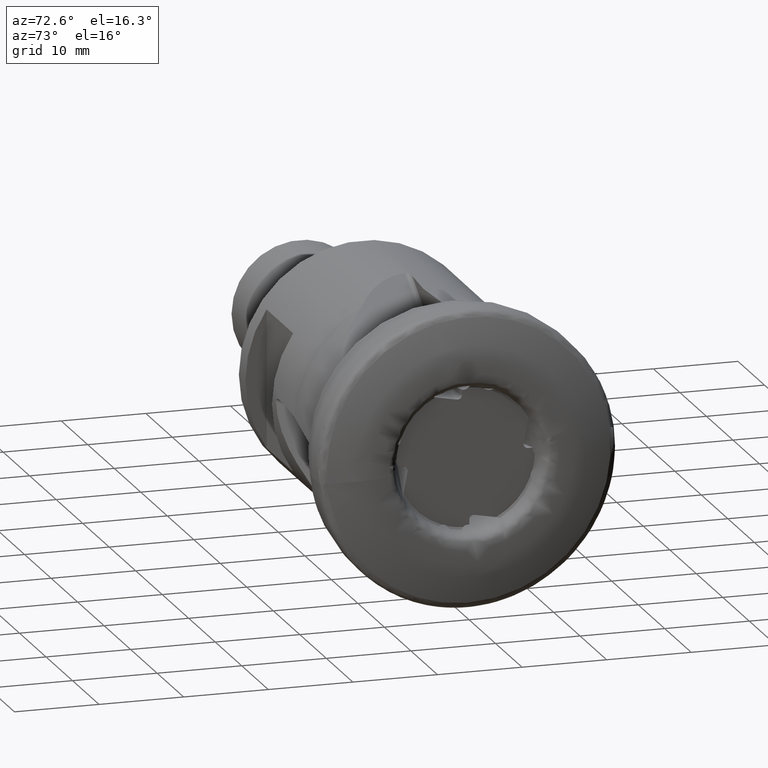
[diagram: clean part render]
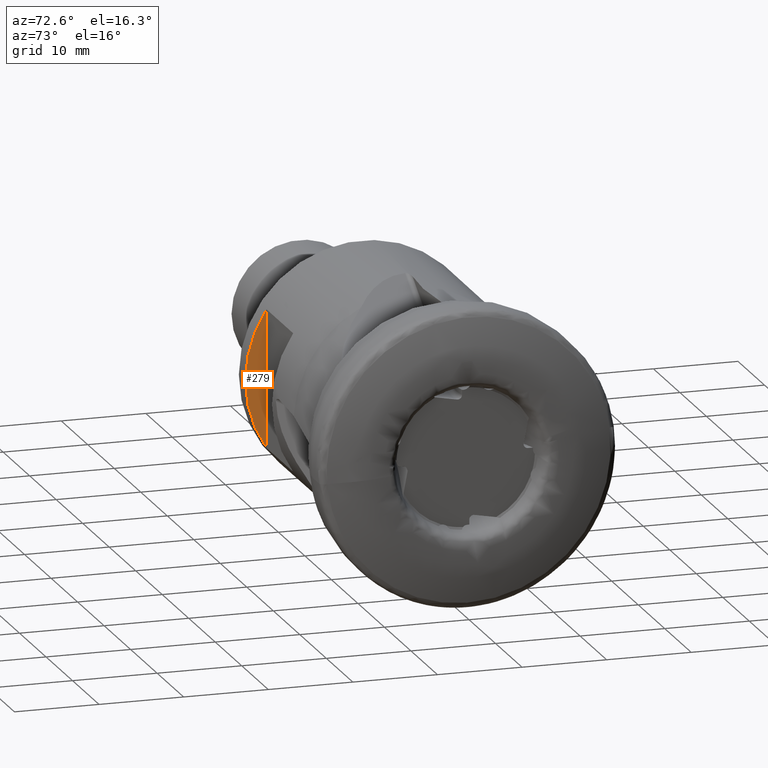
[diagram: same view with one face highlighted and labeled with its STEP entity id]
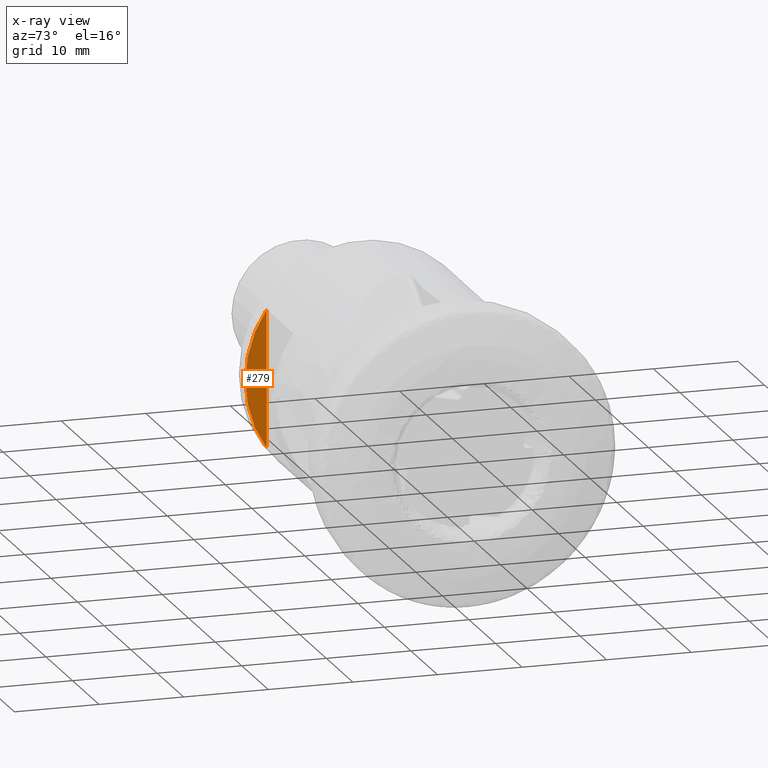
[diagram: x-ray of the same camera — body ghosted, the highlighted face saturated]
A machine part, auxiliary view. The second image highlights one B-rep face of the part: STEP entity #279.
The next image is the same camera in x-ray: the body ghosted, the highlighted face saturated — about 0% of this face is hidden behind the body in this view.
In plain terms, the highlighted planar face has unit normal (-1, -0, 0).
Its self-contained STEP definition (entity closure, byte-faithful):
#199 = ORIENTED_EDGE ( 'NONE', *, *, #3537, .T. ) ;
#279 = ADVANCED_FACE ( 'NONE', ( #1004 ), #5059, .F. ) ;
#558 = VECTOR ( 'NONE', #2853, 1000.000000000000000 ) ;
#849 = EDGE_CURVE ( 'NONE', #1681, #885, #3923, .T. ) ;
#885 = VERTEX_POINT ( 'NONE', #4360 ) ;
#1004 = FACE_OUTER_BOUND ( 'NONE', #4491, .T. ) ;
#1526 = ORIENTED_EDGE ( 'NONE', *, *, #849, .T. ) ;
#1681 = VERTEX_POINT ( 'NONE', #2261 ) ;
#1892 = DIRECTION ( 'NONE',  ( -1.000000000000000000, -1.387778780781447100E-015, 0.0000000000000000000 ) ) ;
#1909 = DIRECTION ( 'NONE',  ( 1.387778780781447100E-015, -1.000000000000000000, 0.0000000000000000000 ) ) ;
#2059 = DIRECTION ( 'NONE',  ( 1.000000000000000000, 1.387778780781447100E-015, 0.0000000000000000000 ) ) ;
#2261 = CARTESIAN_POINT ( 'NONE',  ( -38.04999999999999000, -12.00000000000000500, -8.139410298049844200 ) ) ;
#2853 = DIRECTION ( 'NONE',  ( -0.0000000000000000000, -0.0000000000000000000, 1.000000000000000000 ) ) ;
#3537 = EDGE_CURVE ( 'NONE', #885, #1681, #3633, .T. ) ;
#3633 = CIRCLE ( 'NONE', #3791, 14.50000000000000000 ) ;
#3791 = AXIS2_PLACEMENT_3D ( 'NONE', #4253, #2059, #4993 ) ;
#3923 = LINE ( 'NONE', #4668, #558 ) ;
#4253 = CARTESIAN_POINT ( 'NONE',  ( -38.05000000000000400, -4.659781070755672700E-015, 0.0000000000000000000 ) ) ;
#4360 = CARTESIAN_POINT ( 'NONE',  ( -38.04999999999999000, -12.00000000000000500, 8.139410298049844200 ) ) ;
#4491 = EDGE_LOOP ( 'NONE', ( #199, #1526 ) ) ;
#4645 = AXIS2_PLACEMENT_3D ( 'NONE', #5052, #1892, #1909 ) ;
#4668 = CARTESIAN_POINT ( 'NONE',  ( -38.04999999999999000, -12.00000000000000500, -15.00000000000000000 ) ) ;
#4993 = DIRECTION ( 'NONE',  ( 1.435633221498047300E-015, -1.000000000000000000, 0.0000000000000000000 ) ) ;
#5052 = CARTESIAN_POINT ( 'NONE',  ( -38.04999999999999000, -12.00000000000000500, -15.00000000000000000 ) ) ;
#5059 = PLANE ( 'NONE',  #4645 ) ;